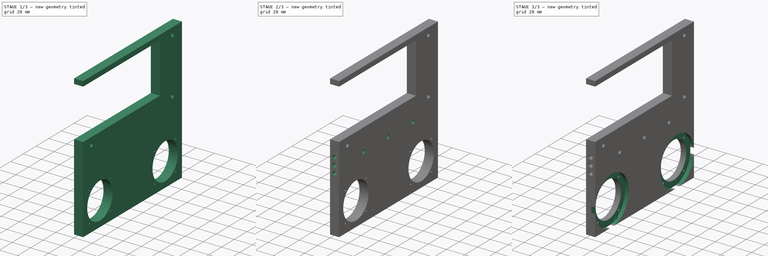
[diagram: build sequence overview — one tinted view per stage of 3, left to right]
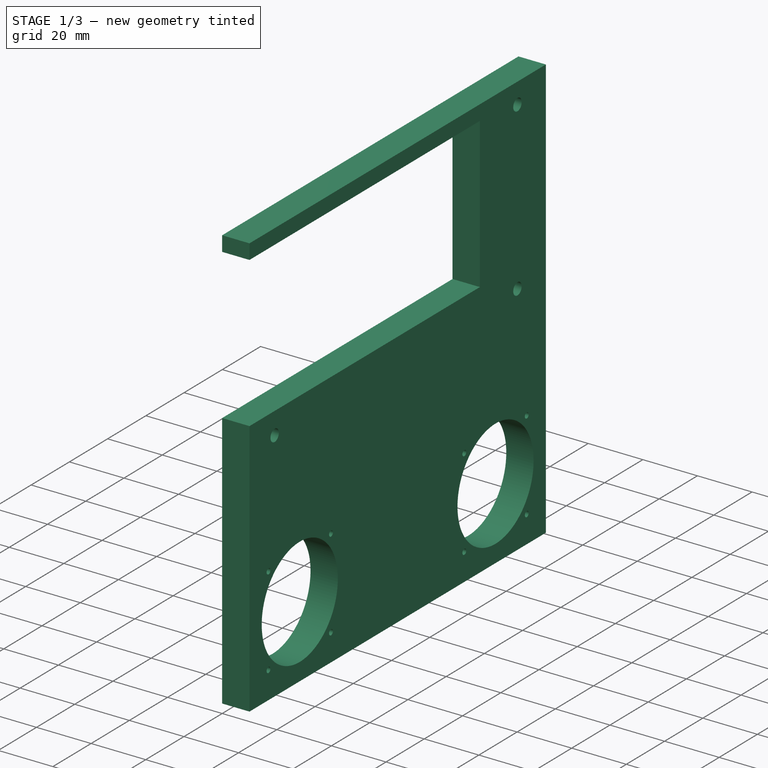
[diagram: stage 1 of 3 — iso view after this stage's code; geometry added in this stage tinted green]
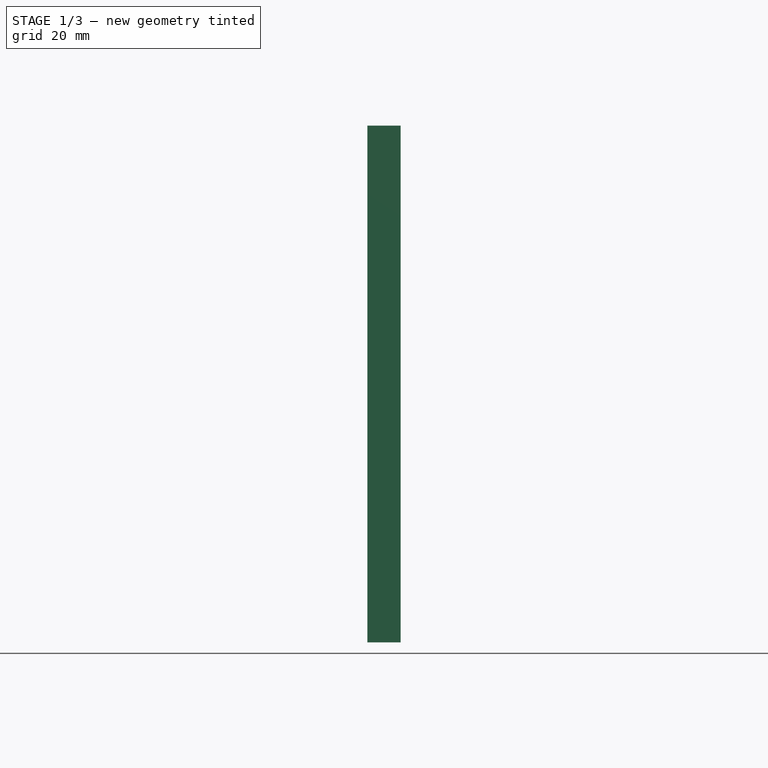
[diagram: stage 1 of 3 — front view after this stage's code; geometry added in this stage tinted green]
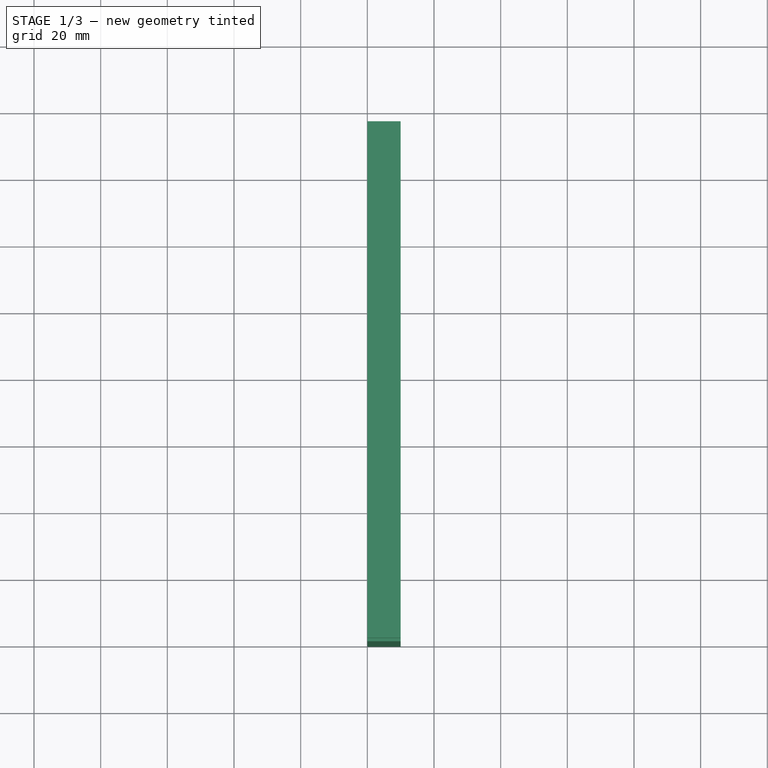
[diagram: stage 1 of 3 — top view after this stage's code; geometry added in this stage tinted green]
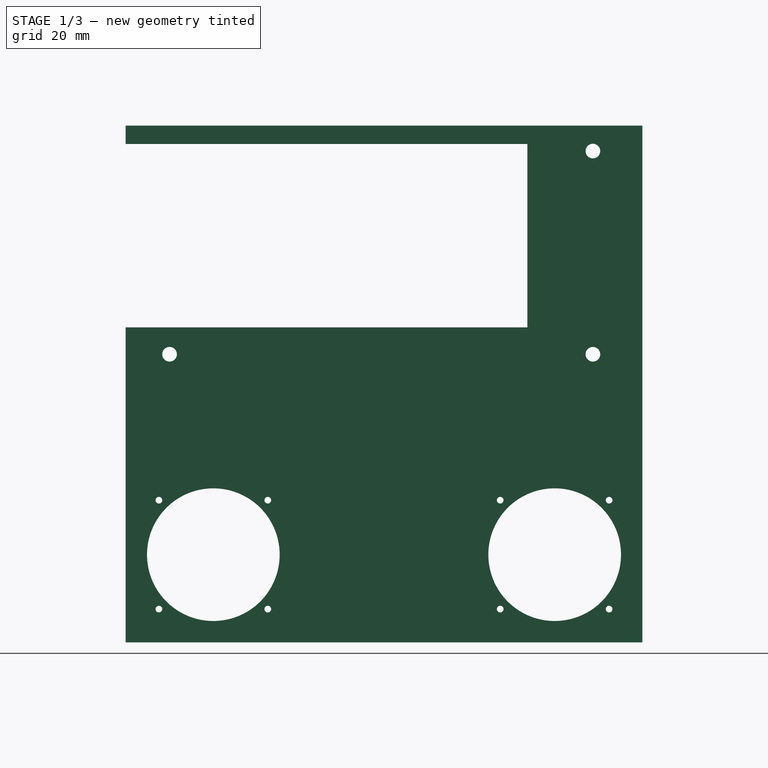
[diagram: stage 1 of 3 — right view after this stage's code; geometry added in this stage tinted green]
FCSTD DOCUMENT  (FreeCAD 0.22R37841 (Git))
Label: controllerv2
License: All rights reserved
LicenseURL: http://en.wikipedia.org/wiki/All_rights_reserved
objects: Sketcher::SketchObject×8, PartDesign::Pocket×7, PartDesign::Pad×1, PartDesign::Body×1
note: 25 computed .brp shape members not serialized (recipe doc carries the construction recipe); baked Part::Feature solids carry a one-line shape summary decoded from their .brp

FEATURE [Sketcher::SketchObject] Sketch
  AttachmentSupport = -> [XY_Plane]
  FullyConstrained = true
  MapMode = 5
  sketch-geometry (4):
    g0: LineSegment StartX=0 StartY=0 StartZ=0 EndX=10 EndY=0 EndZ=0
    g1: LineSegment StartX=10 StartY=0 StartZ=0 EndX=10 EndY=155 EndZ=0
    g2: LineSegment StartX=10 StartY=155 StartZ=0 EndX=0 EndY=155 EndZ=0
    g3: LineSegment StartX=0 StartY=155 StartZ=0 EndX=0 EndY=0 EndZ=0
  constraints (11):
    c: Coincident(g0,g1)
    c: Coincident(g1,g2)
    c: Coincident(g2,g3)
    c: Coincident(g3,g0)
    c: Horizontal(g0)
    c: Horizontal(g2)
    c: Vertical(g1)
    c: Vertical(g3)
    c: Coincident(g0,g-1)
    c: DistanceY(g1,g1) = 155
    c: DistanceX(g0,g0) = 10
FEATURE [PartDesign::Pad] Pad
  Direction = (0,0,1)
  Length = 155
  Length2 = 10
  Profile = -> Sketch
  ReferenceAxis = -> Sketch [N_Axis]
  Suppressed = false
  Type = 0
FEATURE [Sketcher::SketchObject] Sketch001
  AttachmentSupport = -> [Pad]
  ExternalGeometry = -> [Pad]
  FullyConstrained = true
  MapMode = 5
  Placement = pos=(10,0,0) rot=(0.57735,0.57735,0.57735;2.0944rad)
  sketch-geometry (29):
    g0: Circle CenterX=26.3 CenterY=26.3 CenterZ=0 NormalX=0 NormalY=0 NormalZ=1 AngleXU=0 Radius=26.3
    g1: Circle CenterX=128.7 CenterY=26.3 CenterZ=0 NormalX=0 NormalY=0 NormalZ=1 AngleXU=0 Radius=26.3
    g2: LineSegment StartX=26.3 StartY=26.3 StartZ=0 EndX=0 EndY=26.3 EndZ=0
    g3: LineSegment StartX=0 StartY=26.3 StartZ=0 EndX=0 EndY=0 EndZ=0
    g4: LineSegment StartX=0 StartY=0 StartZ=0 EndX=26.3 EndY=0 EndZ=0
    g5: LineSegment StartX=26.3 StartY=0 StartZ=0 EndX=26.3 EndY=26.3 EndZ=0
    g6: LineSegment StartX=128.7 StartY=26.3 StartZ=0 EndX=155 EndY=26.3 EndZ=0
    g7: Circle CenterX=26.3 CenterY=26.3 CenterZ=0 NormalX=0 NormalY=0 NormalZ=1 AngleXU=0 Radius=19.9
    g8: Circle CenterX=128.7 CenterY=26.3 CenterZ=0 NormalX=0 NormalY=0 NormalZ=1 AngleXU=0 Radius=19.9
    g9: Circle CenterX=42.6342 CenterY=42.6342 CenterZ=0 NormalX=0 NormalY=0 NormalZ=1 AngleXU=0 Radius=1
    g10: Circle CenterX=42.6342 CenterY=9.96583 CenterZ=0 NormalX=0 NormalY=0 NormalZ=1 AngleXU=0 Radius=1
    g11: Circle CenterX=9.96583 CenterY=9.96583 CenterZ=0 NormalX=0 NormalY=0 NormalZ=1 AngleXU=0 Radius=1
    g12: Circle CenterX=9.96583 CenterY=42.6342 CenterZ=0 NormalX=0 NormalY=0 NormalZ=1 AngleXU=0 Radius=1
    g13: LineSegment StartX=7.70309 StartY=44.8969 StartZ=0 EndX=9.96583 EndY=42.6342 EndZ=0
    g14: LineSegment StartX=9.96583 StartY=42.6342 StartZ=0 EndX=12.2286 EndY=40.3714 EndZ=0
    g15: Circle CenterX=26.3 CenterY=26.3 CenterZ=0 NormalX=0 NormalY=0 NormalZ=1 AngleXU=0 Radius=23.1
    g16: LineSegment StartX=12.2286 StartY=40.3714 StartZ=0 EndX=26.3 EndY=26.3 EndZ=0
    g17: LineSegment StartX=26.3 StartY=26.3 StartZ=0 EndX=42.6342 EndY=42.6342 EndZ=0
    g18: LineSegment StartX=26.3 StartY=26.3 StartZ=0 EndX=42.6342 EndY=9.96583 EndZ=0
    g19: LineSegment StartX=26.3 StartY=26.3 StartZ=0 EndX=9.96583 EndY=9.96583 EndZ=0
    g20: Circle CenterX=128.7 CenterY=26.3 CenterZ=0 NormalX=0 NormalY=0 NormalZ=1 AngleXU=0 Radius=23.1
    g21: Circle CenterX=112.366 CenterY=42.6342 CenterZ=0 NormalX=0 NormalY=0 NormalZ=1 AngleXU=0 Radius=1
    g22: Circle CenterX=145.034 CenterY=42.6342 CenterZ=0 NormalX=0 NormalY=0 NormalZ=1 AngleXU=0 Radius=1
    g23: Circle CenterX=145.034 CenterY=9.96583 CenterZ=0 NormalX=0 NormalY=0 NormalZ=1 AngleXU=0 Radius=1
    g24: Circle CenterX=112.366 CenterY=9.96583 CenterZ=0 NormalX=0 NormalY=0 NormalZ=1 AngleXU=0 Radius=1
    g25: LineSegment StartX=112.366 StartY=42.6342 StartZ=0 EndX=128.7 EndY=26.3 EndZ=0
    g26: LineSegment StartX=128.7 StartY=26.3 StartZ=0 EndX=112.366 EndY=9.96583 EndZ=0
    g27: LineSegment StartX=128.7 StartY=26.3 StartZ=0 EndX=145.034 EndY=9.96583 EndZ=0
    g28: LineSegment StartX=128.7 StartY=26.3 StartZ=0 EndX=145.034 EndY=42.6342 EndZ=0
  constraints (73):
    c: Radius(g0) = 26.3
    c: Radius(g1) = 26.3
    c: Horizontal(g0,g1)
    c: Coincident(g2,g3)
    c: Coincident(g3,g4)
    c: Coincident(g4,g5)
    c: Coincident(g5,g2)
    c: Horizontal(g2)
    c: Horizontal(g4)
    c: Vertical(g3)
    c: Vertical(g5)
    c: Coincident(g2,g0)
    c: Coincident(g3,g-1)
    c: PointOnObject(g2,g0)
    c: PointOnObject(g4,g0)
    c: Coincident(g6,g1)
    c: PointOnObject(g6,g-4)
    c: Horizontal(g6)
    c: Equal(g2,g6)
    c: Coincident(g7,g0)
    c: Coincident(g8,g1)
    c: Equal(g7,g8)
    c: Radius(g7) = 19.9
    c: PointOnObject(g13,g0)
    c: Coincident(g13,g12)
    c: Coincident(g14,g12)
    c: PointOnObject(g14,g7)
    c: Parallel(g13,g14)
    c: Equal(g13,g14)
    c: Coincident(g15,g7)
    c: PointOnObject(g12,g15)
    c: PointOnObject(g9,g15)
    c: PointOnObject(g10,g15)
    c: PointOnObject(g11,g15)
    c: Equal(g9,g11)
    c: Equal(g10,g12)
    c: Equal(g12,g11)
    c: Radius(g12) = 1
    c: Coincident(g16,g14)
    c: Coincident(g16,g7)
    c: Angle(g16,g2) = 0.785398
    c: Parallel(g14,g16)
    c: Coincident(g17,g7)
    c: Coincident(g17,g9)
    c: Coincident(g18,g7)
    c: Coincident(g18,g10)
    c: Coincident(g19,g7)
    c: Coincident(g19,g11)
    c: Angle(g16,g19) = 1.5708
    c: Angle(g19,g18) = 1.5708
    c: Angle(g18,g17) = 1.5708
    c: Equal(g15,g20)
    c: Coincident(g20,g8)
    c: PointOnObject(g21,g20)
    c: PointOnObject(g22,g20)
    c: PointOnObject(g23,g20)
    c: PointOnObject(g24,g20)
    c: Coincident(g25,g21)
    c: Coincident(g25,g8)
    c: Coincident(g26,g8)
    c: Coincident(g26,g24)
    c: Coincident(g27,g8)
    c: Coincident(g27,g23)
    c: Coincident(g28,g8)
    c: Coincident(g28,g22)
    c: Parallel(g26,g28)
    c: Parallel(g25,g27)
    c: Perpendicular(g28,g25)
    c: Angle(g6,g28) = 0.785398
    c: Equal(g21,g22)
    c: Equal(g24,g23)
    c: Equal(g24,g21)
    c: Equal(g21,g9)
FEATURE [PartDesign::Pocket] Pocket
  BaseFeature = -> Pad
  Direction = (-1,0,0)
  Length = 5
  Length2 = 5
  Profile = -> Sketch001
  ReferenceAxis = -> Sketch001 [N_Axis]
  Suppressed = false
  Type = 1
FEATURE [Sketcher::SketchObject] Sketch002
  AttachmentSupport = -> [Pocket]
  ExternalGeometry = -> [Pocket]
  FullyConstrained = true
  MapMode = 5
  Placement = pos=(10,0,0) rot=(0.57735,0.57735,0.57735;2.0944rad)
  sketch-geometry (14):
    g0: LineSegment StartX=10.5 StartY=155 StartZ=0 EndX=144.5 EndY=155 EndZ=0
    g1: LineSegment StartX=144.5 StartY=155 StartZ=0 EndX=144.5 EndY=80 EndZ=0
    g2: LineSegment StartX=144.5 StartY=80 StartZ=0 EndX=10.5 EndY=80 EndZ=0
    g3: LineSegment StartX=10.5 StartY=80 StartZ=0 EndX=10.5 EndY=155 EndZ=0
    g4: Circle CenterX=13.17 CenterY=147.38 CenterZ=0 NormalX=0 NormalY=0 NormalZ=1 AngleXU=0 Radius=2.2
    g5: Circle CenterX=13.17 CenterY=86.42 CenterZ=0 NormalX=0 NormalY=0 NormalZ=1 AngleXU=0 Radius=2.2
    g6: Circle CenterX=140.17 CenterY=86.42 CenterZ=0 NormalX=0 NormalY=0 NormalZ=1 AngleXU=0 Radius=2.2
    g7: Circle CenterX=140.17 CenterY=147.38 CenterZ=0 NormalX=0 NormalY=0 NormalZ=1 AngleXU=0 Radius=2.2
    g8: LineSegment StartX=0 StartY=155 StartZ=0 EndX=10.5 EndY=155 EndZ=0
    g9: LineSegment StartX=144.5 StartY=155 StartZ=0 EndX=155 EndY=155 EndZ=0
    g10: LineSegment StartX=0 StartY=149.5 StartZ=0 EndX=120.5 EndY=149.5 EndZ=0
    g11: LineSegment StartX=120.5 StartY=149.5 StartZ=0 EndX=120.5 EndY=94.5 EndZ=0
    g12: LineSegment StartX=120.5 StartY=94.5 StartZ=0 EndX=0 EndY=94.5 EndZ=0
    g13: LineSegment StartX=0 StartY=94.5 StartZ=0 EndX=0 EndY=149.5 EndZ=0
  constraints (40):
    c: Coincident(g0,g1)
    c: Coincident(g1,g2)
    c: Coincident(g2,g3)
    c: Coincident(g3,g0)
    c: Horizontal(g0)
    c: Horizontal(g2)
    c: Vertical(g1)
    c: Vertical(g3)
    c: DistanceX(g0,g0) = 134
    c: DistanceY(g3,g3) = 75
    c: DistanceX(g0,g7) = 129.67
    c: Vertical(g7,g6)
    c: Vertical(g5,g4)
    c: Horizontal(g5,g6)
    c: Horizontal(g7,g4)
    c: DistanceX(g0,g4) = 2.67
    c: DistanceY(g4,g0) = 7.62
    c: DistanceY(g5,g0) = 68.58
    c: Radius(g4) = 2.2
    c: Equal(g4,g5)
    c: Equal(g6,g7)
    c: Equal(g7,g4)
    c: Horizontal(g-5,g0)
    c: Coincident(g8,g-5)
    c: Coincident(g8,g0)
    c: Coincident(g9,g0)
    c: Coincident(g9,g-4)
    c: Equal(g9,g8)
    c: Coincident(g10,g11)
    c: Coincident(g11,g12)
    c: Coincident(g12,g13)
    c: Coincident(g13,g10)
    c: Horizontal(g10)
    c: Horizontal(g12)
    c: Vertical(g11)
    c: Vertical(g13)
    c: PointOnObject(g10,g-5)
    c: DistanceX(g10,g0) = 24
    c: DistanceY(g13,g13) = 55
    c: DistanceY(g10,g8) = 5.5
FEATURE [PartDesign::Pocket] Pocket001
  BaseFeature = -> Pocket
  Direction = (-1,0,0)
  Length = 10
  Length2 = 5
  Profile = -> Sketch002
  ReferenceAxis = -> Sketch002 [N_Axis]
  Suppressed = false
  Type = 1
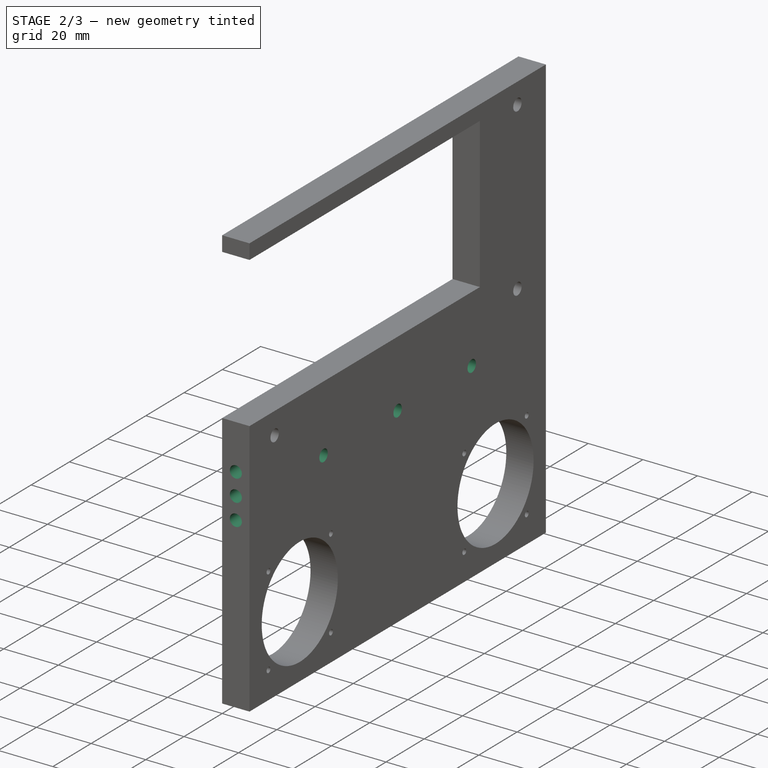
[diagram: stage 2 of 3 — iso view after this stage's code; geometry added in this stage tinted green]
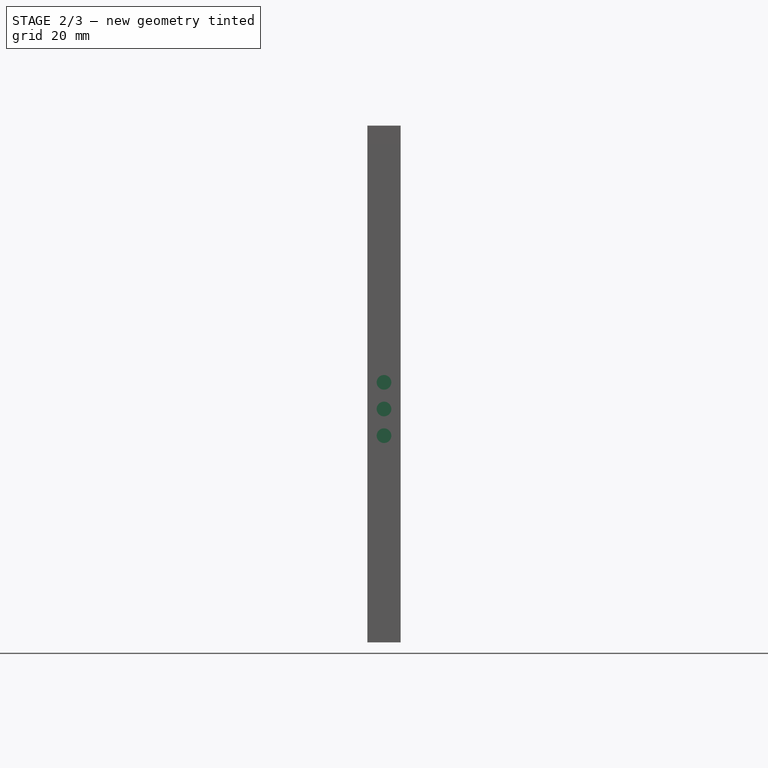
[diagram: stage 2 of 3 — front view after this stage's code; geometry added in this stage tinted green]
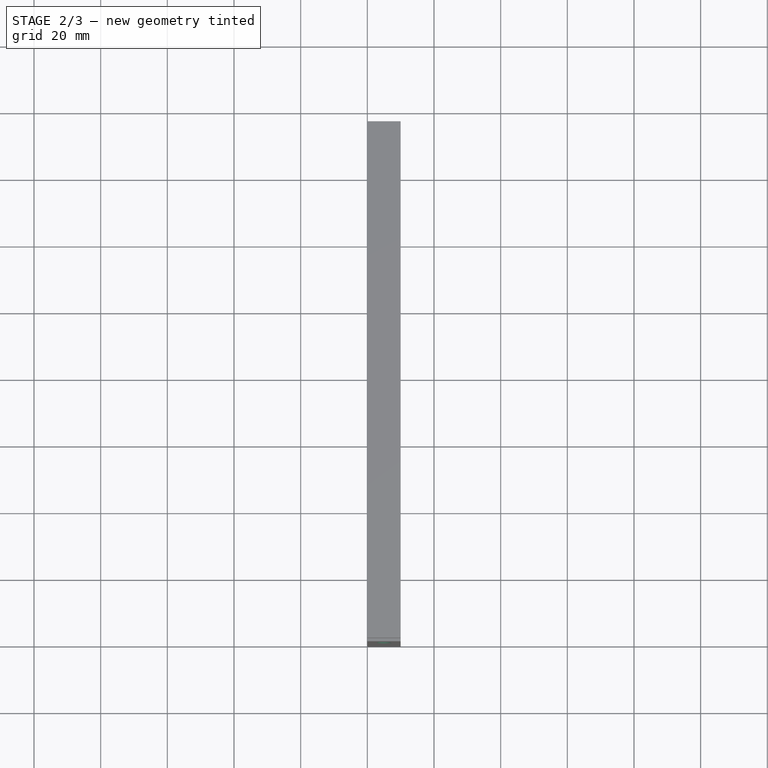
[diagram: stage 2 of 3 — top view after this stage's code; geometry added in this stage tinted green]
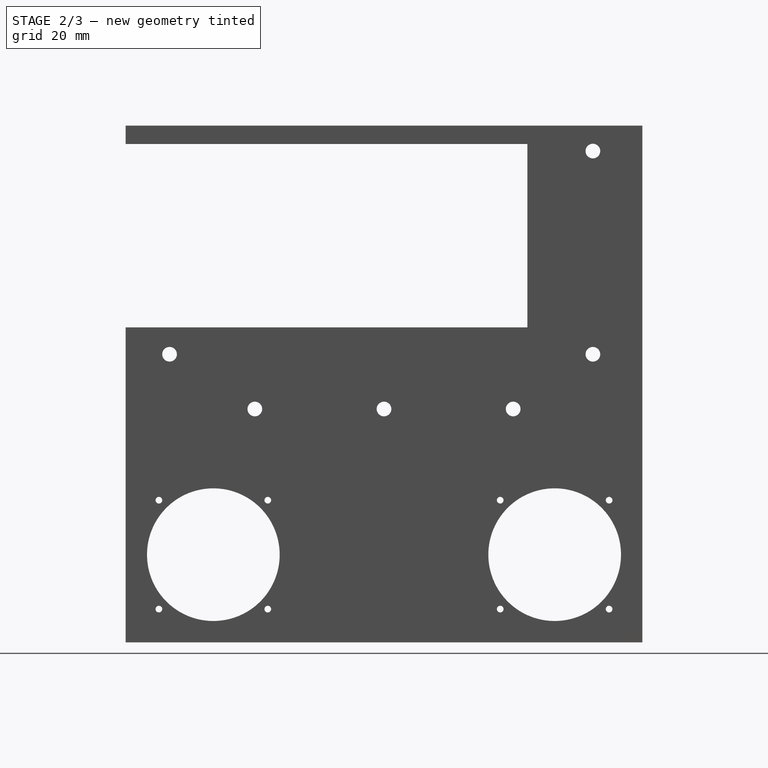
[diagram: stage 2 of 3 — right view after this stage's code; geometry added in this stage tinted green]
FEATURE [Sketcher::SketchObject] Sketch003
  AttachmentSupport = -> [Pocket001]
  ExternalGeometry = -> [Pocket001]
  FullyConstrained = true
  MapMode = 5
  Placement = pos=(10,0,0) rot=(0.57735,0.57735,0.57735;2.0944rad)
  sketch-geometry (7):
    g0: Circle CenterX=38.75 CenterY=70 CenterZ=0 NormalX=0 NormalY=0 NormalZ=1 AngleXU=0 Radius=2.2
    g1: Circle CenterX=77.5 CenterY=70 CenterZ=0 NormalX=0 NormalY=0 NormalZ=1 AngleXU=0 Radius=2.2
    g2: Circle CenterX=116.25 CenterY=70 CenterZ=0 NormalX=0 NormalY=0 NormalZ=1 AngleXU=0 Radius=2.2
    g3: LineSegment StartX=38.75 StartY=70 StartZ=0 EndX=0 EndY=70 EndZ=0
    g4: LineSegment StartX=38.75 StartY=70 StartZ=0 EndX=77.5 EndY=70 EndZ=0
    g5: LineSegment StartX=77.5 StartY=70 StartZ=0 EndX=116.25 EndY=70 EndZ=0
    g6: LineSegment StartX=116.25 StartY=70 StartZ=0 EndX=155 EndY=70 EndZ=0
  constraints (19):
    c: Horizontal(g0,g1)
    c: Horizontal(g1,g2)
    c: Coincident(g3,g0)
    c: PointOnObject(g3,g-2)
    c: Horizontal(g3)
    c: Coincident(g4,g0)
    c: Coincident(g4,g1)
    c: Coincident(g5,g1)
    c: Coincident(g5,g2)
    c: Coincident(g6,g2)
    c: PointOnObject(g6,g-3)
    c: Horizontal(g6)
    c: Equal(g3,g4)
    c: Equal(g4,g5)
    c: Equal(g5,g6)
    c: Equal(g2,g1)
    c: Equal(g1,g0)
    c: Radius(g0) = 2.2
    c: DistanceY(g-1,g3) = 70
FEATURE [PartDesign::Pocket] Pocket002
  BaseFeature = -> Pocket001
  Direction = (-1,0,0)
  Length = 5
  Length2 = 5
  Profile = -> Sketch003
  ReferenceAxis = -> Sketch003 [N_Axis]
  Suppressed = false
  Type = 1
FEATURE [Sketcher::SketchObject] Sketch004
  AttachmentSupport = -> [Pocket002]
  ExternalGeometry = -> [Pocket002]
  FullyConstrained = true
  MapMode = 5
  Placement = pos=(0,0,0) rot=(1,0,0;1.5708rad)
  sketch-geometry (7):
    g0: Circle CenterX=5 CenterY=70 CenterZ=0 NormalX=0 NormalY=0 NormalZ=1 AngleXU=0 Radius=2.2
    g1: LineSegment StartX=10 StartY=72.2 StartZ=0 EndX=10 EndY=70 EndZ=0
    g2: LineSegment StartX=10 StartY=70 StartZ=0 EndX=10 EndY=67.8 EndZ=0
    g3: LineSegment StartX=10 StartY=70 StartZ=0 EndX=5 EndY=70 EndZ=0
    g4: LineSegment StartX=5 StartY=70 StartZ=0 EndX=0 EndY=70 EndZ=0
    g5: Circle CenterX=5 CenterY=62 CenterZ=0 NormalX=0 NormalY=0 NormalZ=1 AngleXU=0 Radius=2.2
    g6: Circle CenterX=5 CenterY=78 CenterZ=0 NormalX=0 NormalY=0 NormalZ=1 AngleXU=0 Radius=2.2
  constraints (19):
    c: Coincident(g1,g-3)
    c: PointOnObject(g1,g-3)
    c: Coincident(g2,g1)
    c: Coincident(g2,g-3)
    c: Equal(g2,g1)
    c: Coincident(g3,g1)
    c: Horizontal(g3)
    c: Coincident(g4,g3)
    c: PointOnObject(g4,g-2)
    c: Horizontal(g4)
    c: Equal(g4,g3)
    c: Coincident(g0,g3)
    c: Radius(g0) = 2.2
    c: Vertical(g6,g0)
    c: Vertical(g5,g0)
    c: DistanceY(g5,g0) = 8
    c: DistanceY(g0,g6) = 8
    c: Equal(g6,g5)
    c: Equal(g5,g0)
FEATURE [PartDesign::Pocket] Pocket003
  BaseFeature = -> Pocket002
  Direction = (0,1,-2e-16)
  Length = 5
  Length2 = 5
  Profile = -> Sketch004
  ReferenceAxis = -> Sketch004 [N_Axis]
  Suppressed = false
  Type = 0
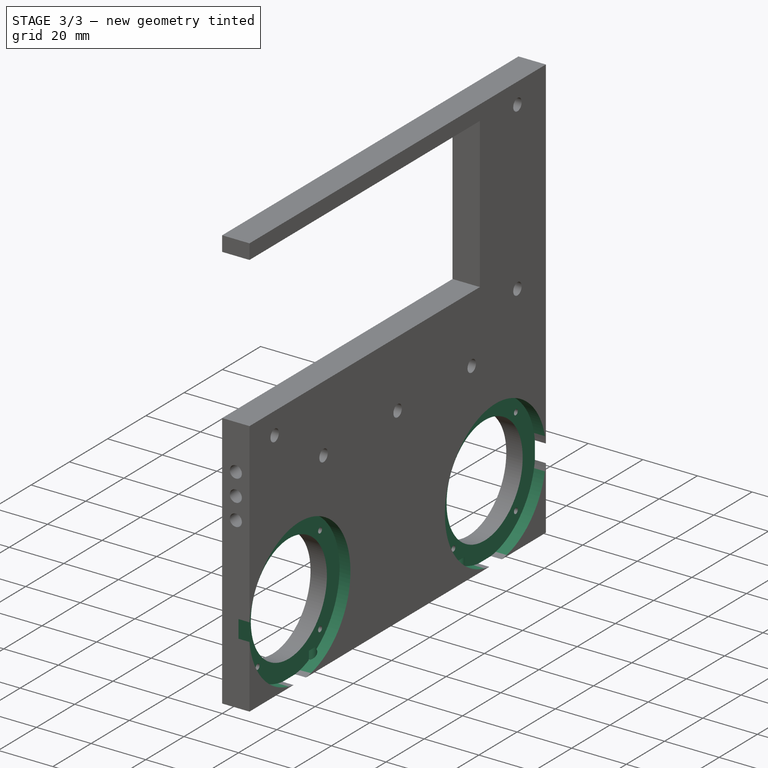
[diagram: stage 3 of 3 — iso view after this stage's code; geometry added in this stage tinted green]
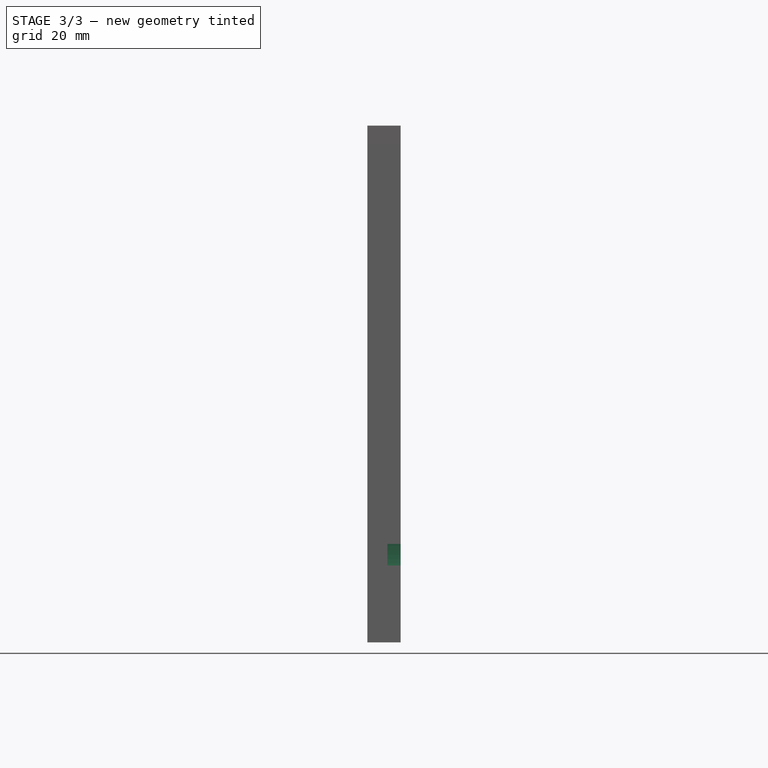
[diagram: stage 3 of 3 — front view after this stage's code; geometry added in this stage tinted green]
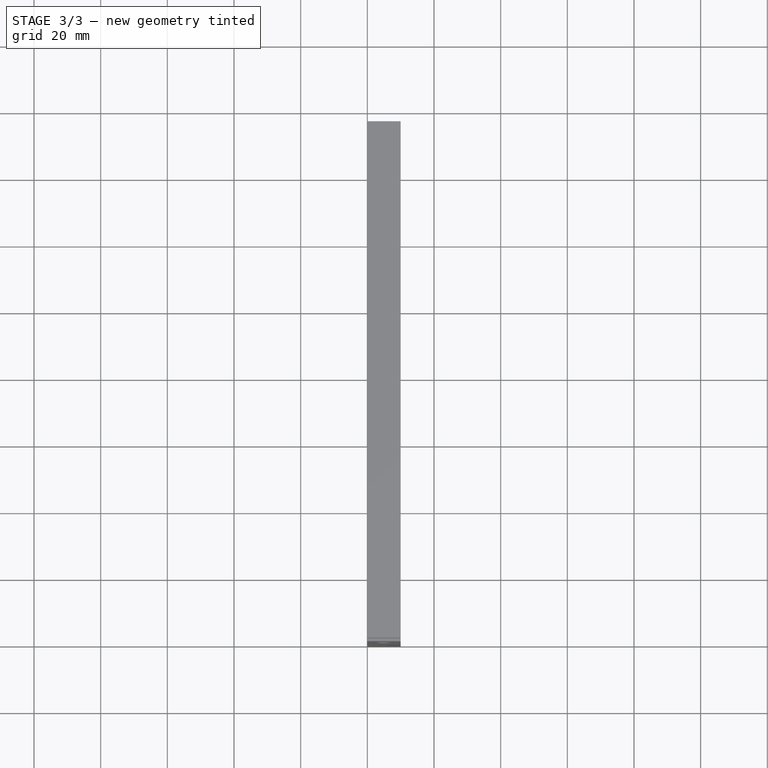
[diagram: stage 3 of 3 — top view after this stage's code; geometry added in this stage tinted green]
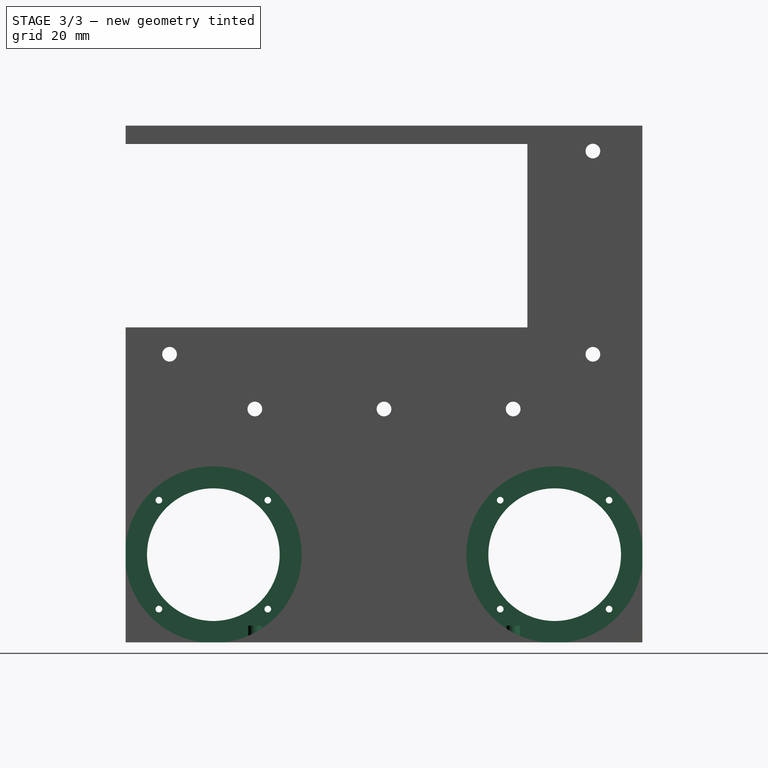
[diagram: stage 3 of 3 — right view after this stage's code; geometry added in this stage tinted green]
FEATURE [Sketcher::SketchObject] Sketch005
  AttachmentSupport = -> [Pocket003]
  ExternalGeometry = -> [Pocket003]
  FullyConstrained = true
  MapMode = 5
  Placement = pos=(0,155,0) rot=(0,0.707107,0.707107;3.14159rad)
  sketch-geometry (3):
    g0: Circle CenterX=-5 CenterY=78 CenterZ=0 NormalX=0 NormalY=0 NormalZ=1 AngleXU=0 Radius=2.2
    g1: Circle CenterX=-5 CenterY=70 CenterZ=0 NormalX=0 NormalY=0 NormalZ=1 AngleXU=0 Radius=2.2
    g2: Circle CenterX=-5 CenterY=62 CenterZ=0 NormalX=0 NormalY=0 NormalZ=1 AngleXU=0 Radius=2.2
  constraints (6):
    c: Coincident(g0,g-3)
    c: Coincident(g1,g-4)
    c: Coincident(g2,g-5)
    c: Equal(g2,g-4)
    c: Equal(g1,g0)
    c: Equal(g-4,g1)
FEATURE [PartDesign::Pocket] Pocket004
  BaseFeature = -> Pocket003
  Direction = (0,-1,2e-16)
  Length = 5
  Length2 = 5
  Profile = -> Sketch005
  ReferenceAxis = -> Sketch005 [N_Axis]
  Suppressed = false
  Type = 0
FEATURE [Sketcher::SketchObject] Sketch006
  AttachmentSupport = -> [Pocket004]
  ExternalGeometry = -> [Pocket004]
  FullyConstrained = true
  MapMode = 5
  Placement = pos=(0,0,0) rot=(1,0,0;3.14159rad)
  sketch-geometry (11):
    g0: Circle CenterX=5 CenterY=-38.75 CenterZ=0 NormalX=0 NormalY=0 NormalZ=1 AngleXU=0 Radius=2.2
    g1: Circle CenterX=5 CenterY=-77.5 CenterZ=0 NormalX=0 NormalY=0 NormalZ=1 AngleXU=0 Radius=2.2
    g2: Circle CenterX=5 CenterY=-116.25 CenterZ=0 NormalX=0 NormalY=0 NormalZ=1 AngleXU=0 Radius=2.2
    g3: LineSegment StartX=0 StartY=-77.5 StartZ=0 EndX=5 EndY=-77.5 EndZ=0
    g4: LineSegment StartX=5 StartY=-77.5 StartZ=0 EndX=10 EndY=-77.5 EndZ=0
    g5: LineSegment StartX=10 StartY=-77.5 StartZ=0 EndX=10 EndY=-79.7 EndZ=0
    g6: LineSegment StartX=10 StartY=-77.5 StartZ=0 EndX=10 EndY=-75.3 EndZ=0
    g7: LineSegment StartX=10 StartY=-36.55 StartZ=0 EndX=10 EndY=-38.75 EndZ=0
    g8: LineSegment StartX=10 StartY=-38.75 StartZ=0 EndX=10 EndY=-40.95 EndZ=0
    g9: LineSegment StartX=10 StartY=-114.05 StartZ=0 EndX=10 EndY=-116.25 EndZ=0
    g10: LineSegment StartX=10 StartY=-116.25 StartZ=0 EndX=10 EndY=-118.45 EndZ=0
  constraints (29):
    c: PointOnObject(g3,g-2)
    c: Horizontal(g3)
    c: Coincident(g4,g3)
    c: PointOnObject(g4,g-4)
    c: Coincident(g5,g4)
    c: Coincident(g5,g-4)
    c: Coincident(g6,g4)
    c: Coincident(g6,g-4)
    c: Horizontal(g4)
    c: Equal(g3,g4)
    c: Equal(g6,g5)
    c: Coincident(g1,g3)
    c: Coincident(g7,g-5)
    c: PointOnObject(g7,g-5)
    c: Coincident(g8,g7)
    c: Coincident(g8,g-5)
    c: Equal(g7,g8)
    c: Horizontal(g7,g0)
    c: Coincident(g9,g-3)
    c: PointOnObject(g9,g-3)
    c: Coincident(g10,g9)
    c: Coincident(g10,g-3)
    c: Equal(g10,g9)
    c: Horizontal(g9,g2)
    c: Radius(g2) = 2.2
    c: Equal(g0,g1)
    c: Equal(g1,g2)
    c: Vertical(g0,g1)
    c: Vertical(g1,g2)
FEATURE [PartDesign::Pocket] Pocket005
  BaseFeature = -> Pocket004
  Direction = (0,0,1)
  Length = 5
  Length2 = 5
  Profile = -> Sketch006
  ReferenceAxis = -> Sketch006 [N_Axis]
  Suppressed = false
  Type = 0
FEATURE [Sketcher::SketchObject] Sketch007
  AttachmentSupport = -> [Pocket005]
  ExternalGeometry = -> [Pocket005]
  FullyConstrained = true
  MapMode = 5
  Placement = pos=(10,0,0) rot=(0.57735,0.57735,0.57735;2.0944rad)
  sketch-geometry (4):
    g0: Circle CenterX=26.3 CenterY=26.3 CenterZ=0 NormalX=0 NormalY=0 NormalZ=1 AngleXU=0 Radius=26.5
    g1: Circle CenterX=26.3 CenterY=26.3 CenterZ=0 NormalX=0 NormalY=0 NormalZ=1 AngleXU=0 Radius=19.9
    g2: Circle CenterX=128.7 CenterY=26.3 CenterZ=0 NormalX=0 NormalY=0 NormalZ=1 AngleXU=0 Radius=19.9
    g3: Circle CenterX=128.7 CenterY=26.3 CenterZ=0 NormalX=0 NormalY=0 NormalZ=1 AngleXU=0 Radius=26.5
  constraints (8):
    c: Coincident(g0,g-3)
    c: Coincident(g1,g0)
    c: Coincident(g2,g-4)
    c: Coincident(g3,g2)
    c: Equal(g1,g2)
    c: Equal(g2,g-4)
    c: Equal(g3,g0)
    c: Radius(g0) = 26.5
FEATURE [PartDesign::Pocket] Pocket006
  BaseFeature = -> Pocket005
  Direction = (-1,0,0)
  Length = 4
  Length2 = 5
  Profile = -> Sketch007
  ReferenceAxis = -> Sketch007 [N_Axis]
  Suppressed = false
  Type = 0
FEATURE [PartDesign::Body] Body
  AllowCompound = false
  Group = -> [Sketch,Pad,Sketch001,Pocket,Sketch002,Pocket001,Sketch003,Pocket002,Sketch004,Pocket003,Sketch005,Pocket004,Sketch006,Pocket005,Sketch007,Pocket006]
  Origin = -> Origin
  Tip = -> Pocket006
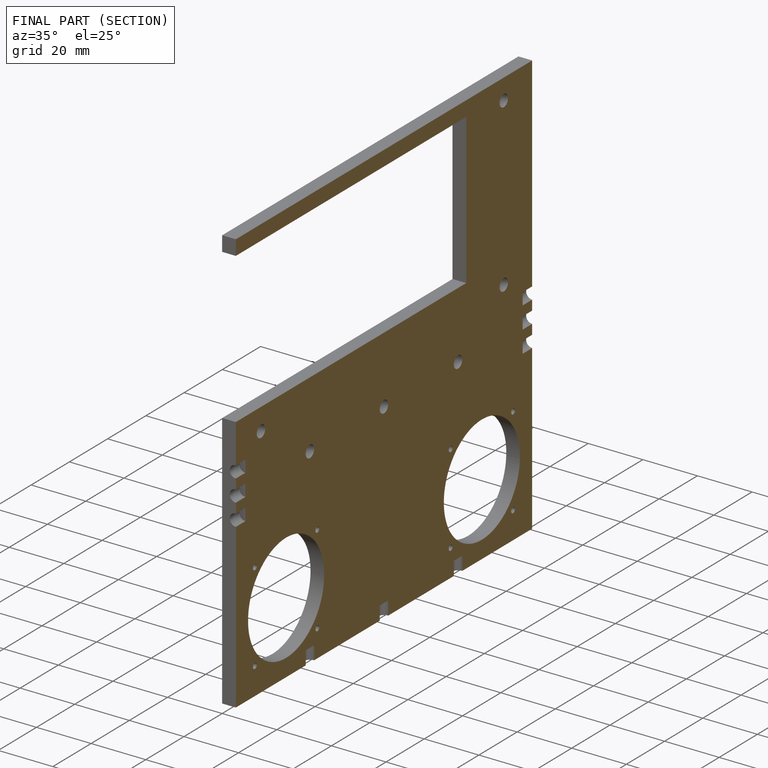
[diagram: finished part — half-section view (interior)]
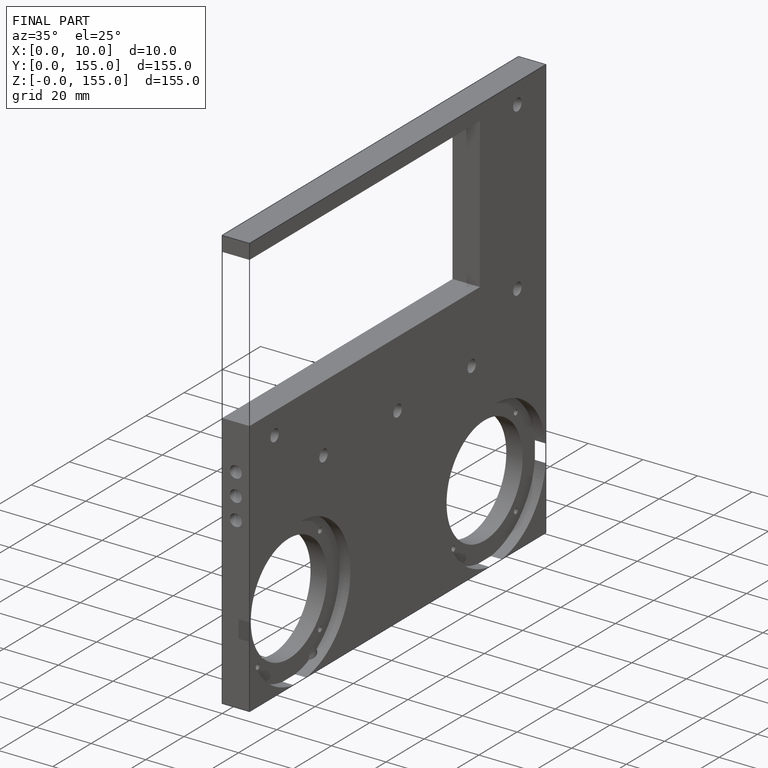
[diagram: finished part — iso view with bounding-box wireframe]
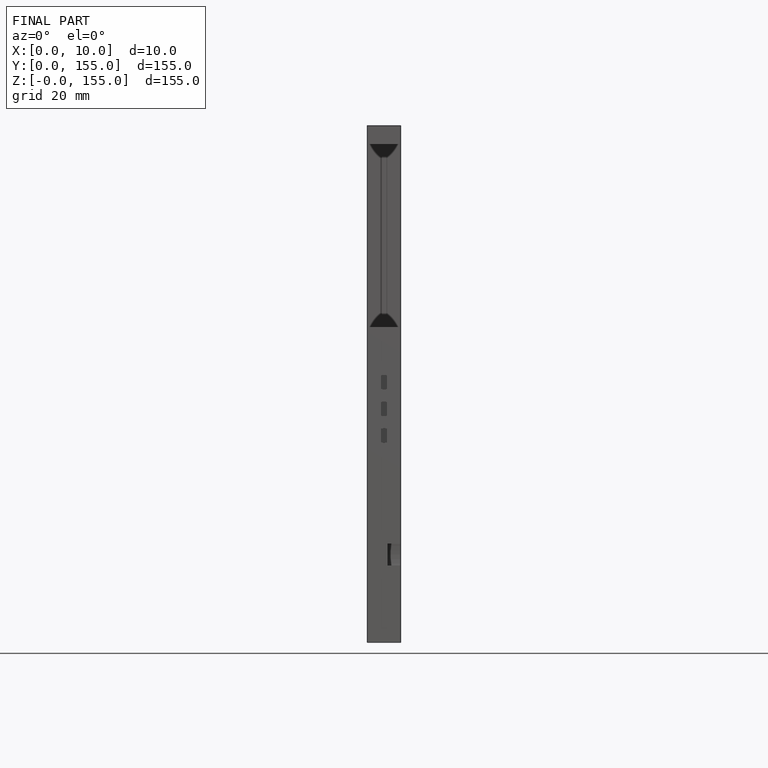
[diagram: finished part — front view with bounding-box wireframe]
